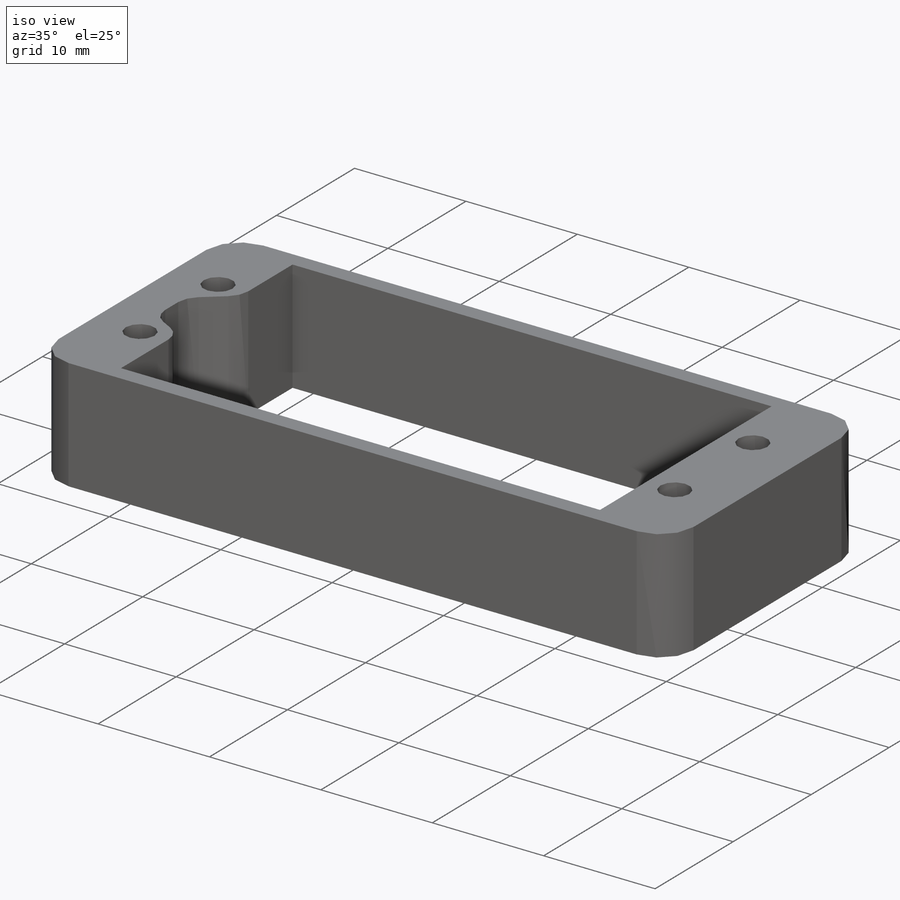
[diagram: iso view]
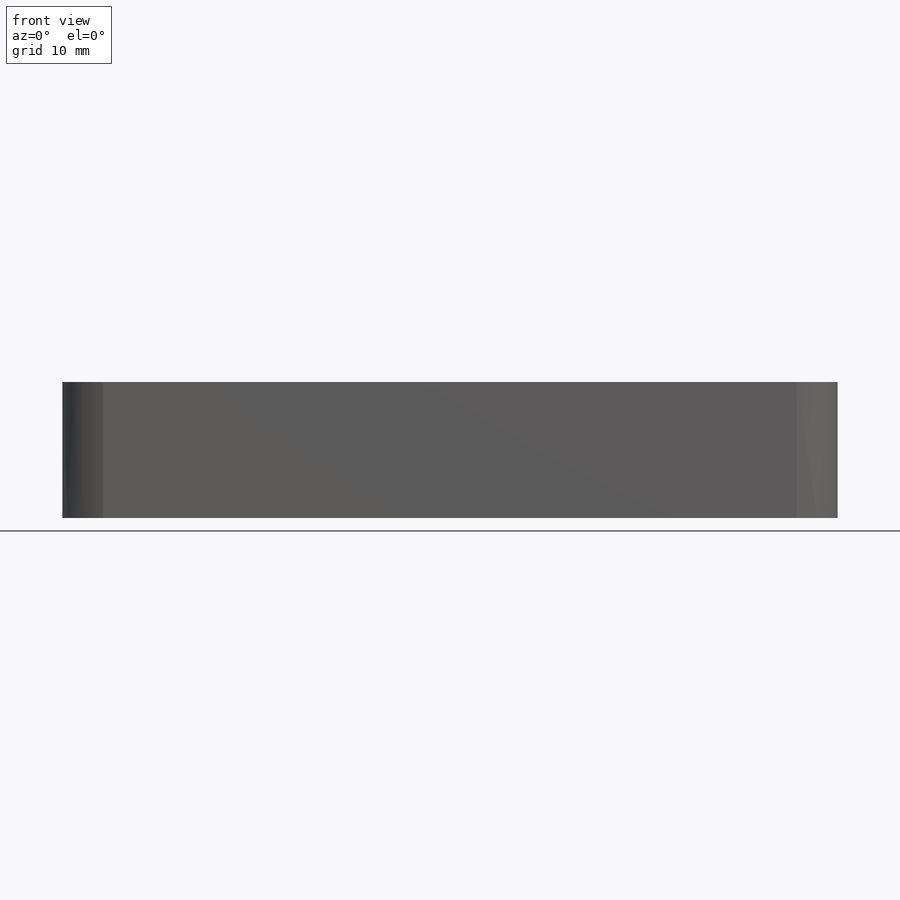
[diagram: front view]
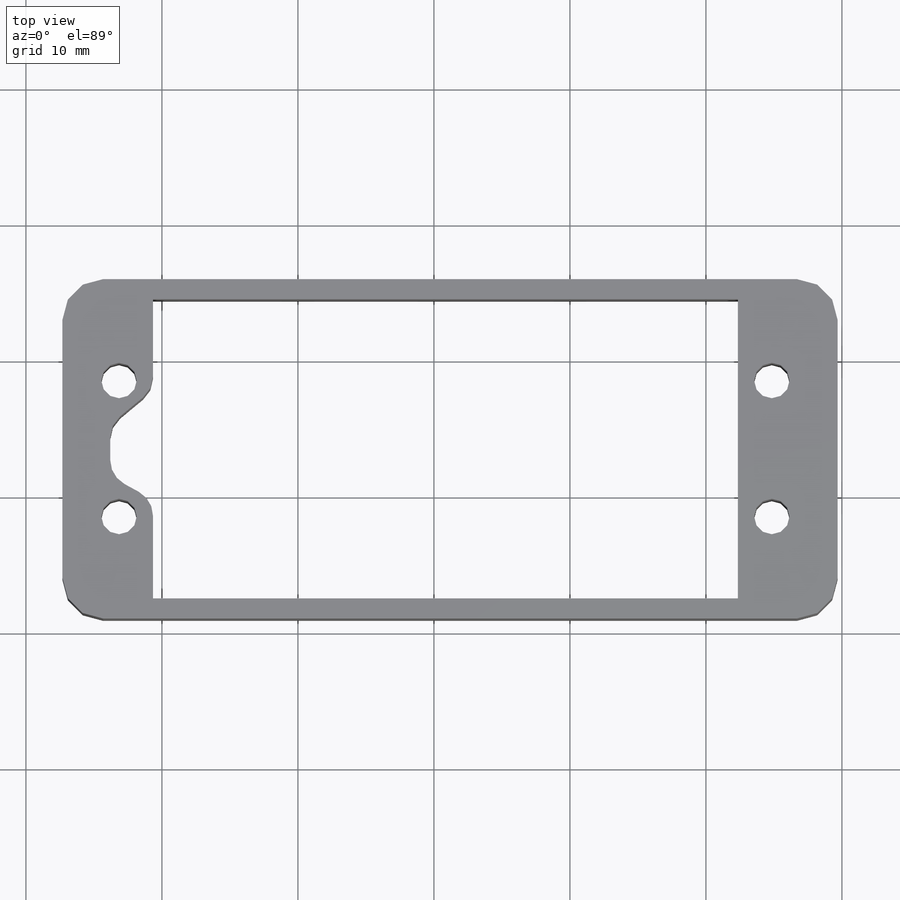
[diagram: top view]
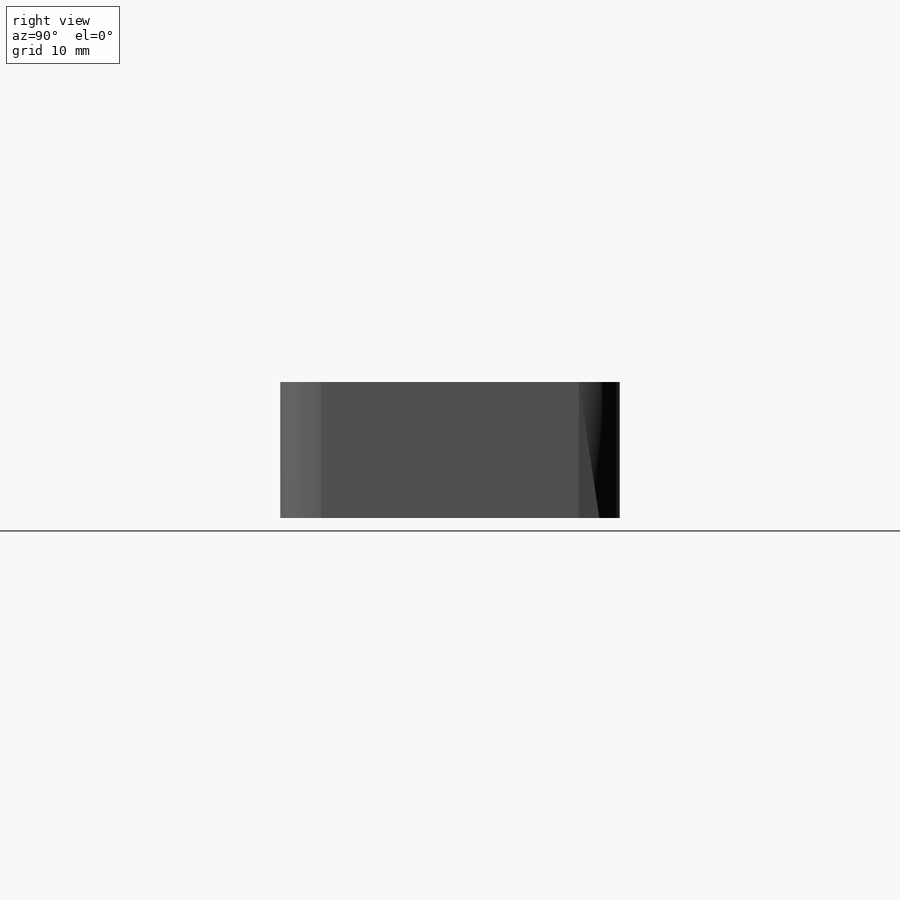
[diagram: right view]
SOLIDWORKS PART (.sldprt)
format: sldprt  version: not decoded by parser v0  size: 301,568 bytes
history: native  units: mm
features: sketch x6, cut_extrude x4, plane x3, extrude x2, fillet x2, material x1 (+10 scaffold rows collapsed)
feature tree (28):
  scaffold x10  (default folders/planes/origin — collapsed)
  material  "Material <sin especificar>"
  plane  "Alzado"
  plane  "Planta"
  plane  "Vista lateral"
  sketch  "Croquis1"  dims[D1=43.0mm D2=22.0mm D3=43.0mm]
  extrude  "Main"  Depth=28mm
  sketch  "Croquis2"  dims[D1=32.0mm D2=10.0mm]
  cut_extrude  "Corte Caja "  [1 undecoded]
  sketch  "Croquis3"  dims[D1=~10.500717mm]
  extrude  "Saliente-Extruir2"  Depth=2.25mm
  fillet  "Redondeo Laterales"  Radius=3mm
  sketch  "Croquis7"  dims[c1.D7=~2.054869mm c1.D1=10.0mm c1.D2=5.0mm c1.D3=5.0mm c1.D4=~7.444344mm c1.D5=2.5mm c1.D6=2.5mm c2.D1=12.5mm c2.D7=~12.45947mm c2.D8=48.0mm]
  cut_extrude  "Taladros Base"  Depth=11mm
  sketch  "Croquis8"  dims[D1=12.5mm D2=~2.855229mm]
  cut_extrude  "Cajeado cable"  Depth=10mm
  fillet  "Cajeado Redondeo"  Radius=2mm
  sketch  "Croquis10"  dims[D1=10.0mm]
  cut_extrude  "Cortar-Extruir1"  [1 undecoded]
decode coverage: 12 of 14 modeling features carry decoded parameters
note: ~ marks probable driven/reference dimensions
note: 2 parameter values undecoded
note: suppression state not decoded; provenance and decode notes live in map.json
